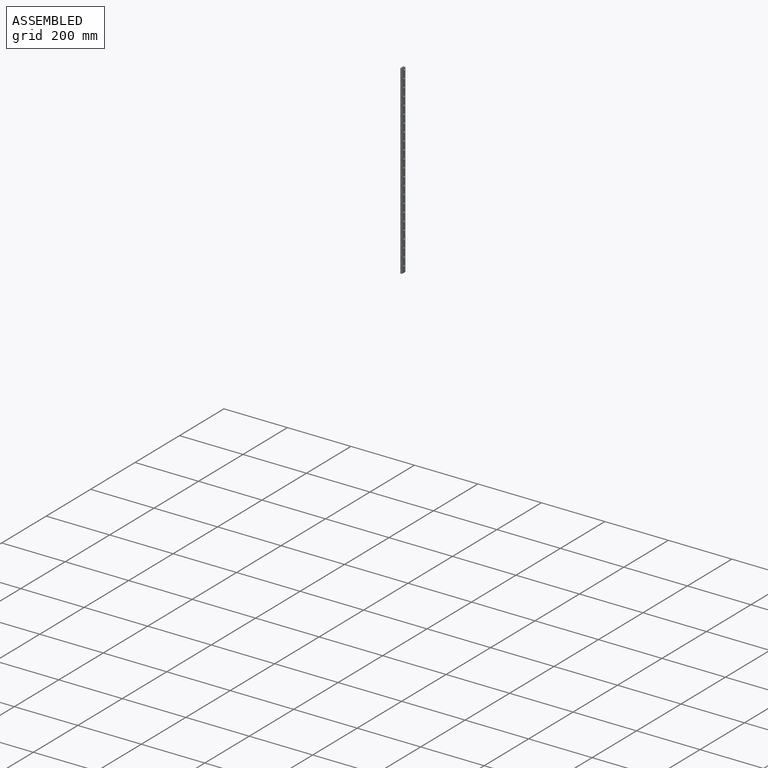
[diagram: assembled view]
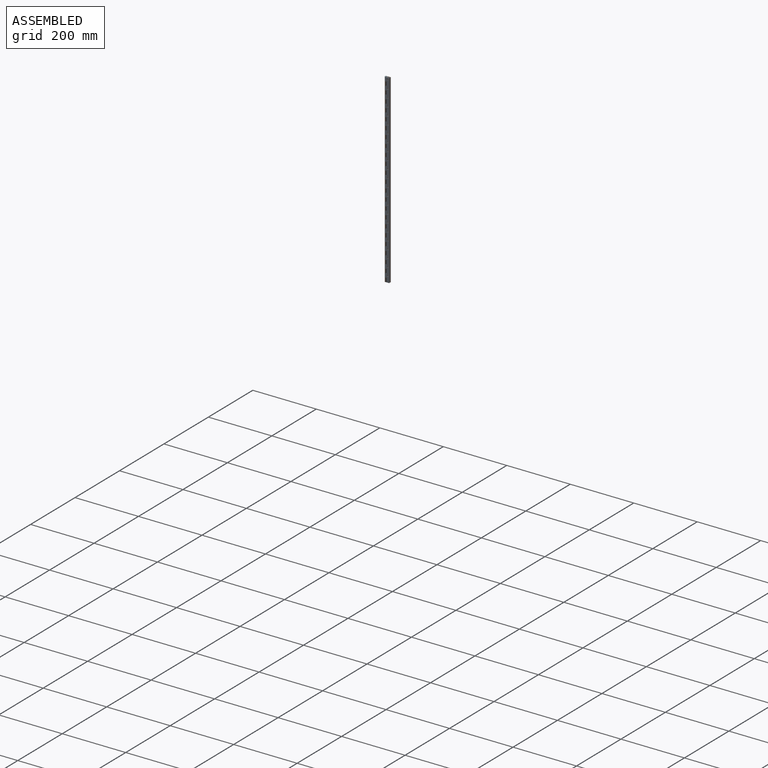
[diagram: assembled view, second angle]
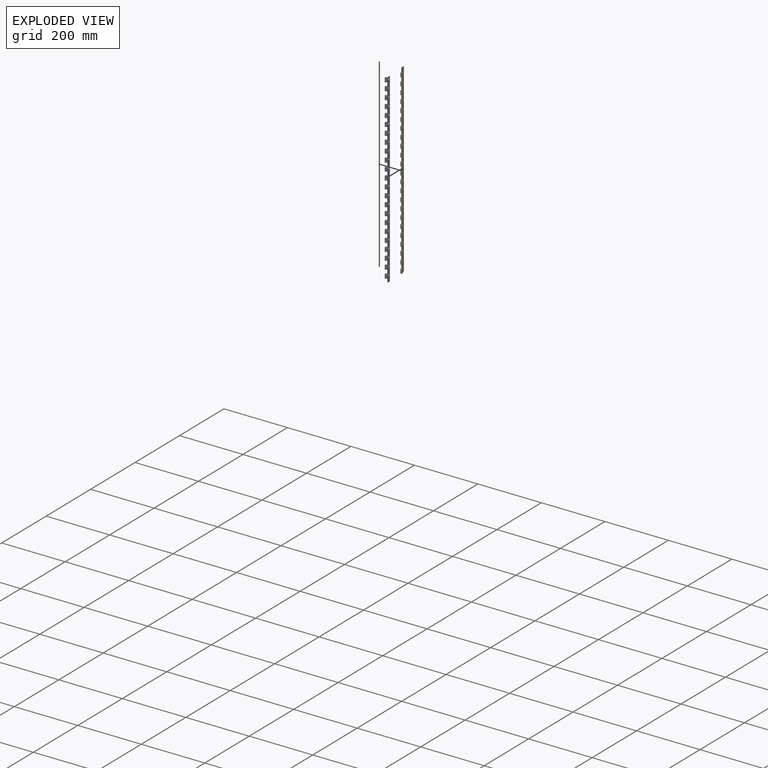
[diagram: exploded view]
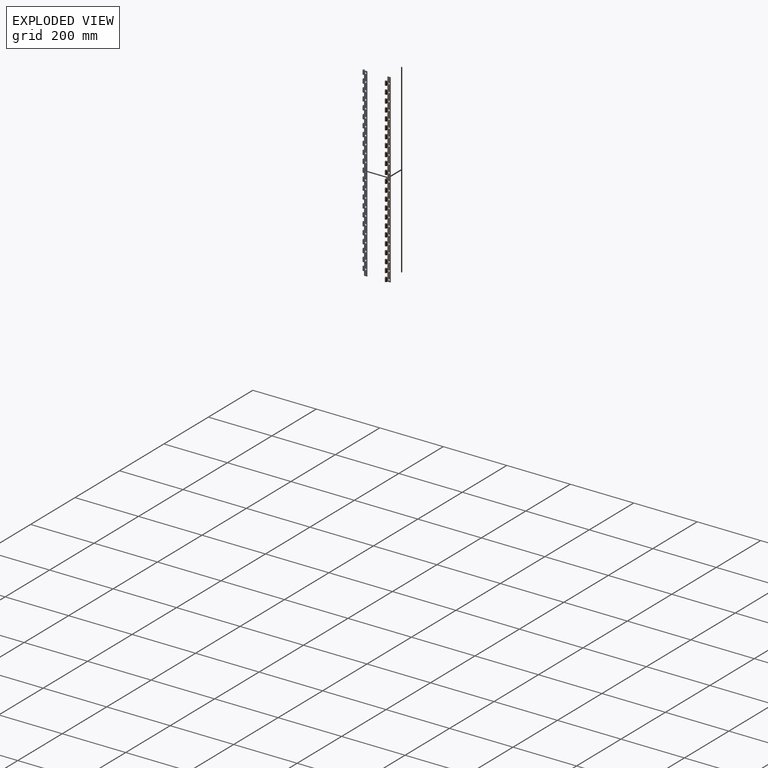
[diagram: exploded view, second angle]
ASSEMBLY  parts=3 mates=2
PART A: 211 faces, bbox 6.4x15.9x584.2 mm
  f0: plane 12.7x1.08mm, normal (0,1,0), area 13.7mm2, adj f67,f89,f160,f198
  f1: plane 12.7x1.08mm, normal (0,1,0), area 13.7mm2, adj f68,f90,f195,f199
  f2: plane 12.7x1.08mm, normal (0,1,0), area 13.7mm2, adj f69,f92,f162,f186
  f3: plane 12.7x1.08mm, normal (0,1,0), area 13.7mm2, adj f70,f93,f175,f180
  f4: plane 12.7x1.08mm, normal (0,1,0), area 13.7mm2, adj f71,f94,f171,f176
  f5: plane 12.7x1.08mm, normal (0,1,0), area 13.7mm2, adj f72,f91,f172,f196
  f6: plane 12.7x1.08mm, normal (0,1,0), area 13.7mm2, adj f73,f95,f167,f209
  f7: plane 12.7x1.08mm, normal (0,1,0), area 13.7mm2, adj f74,f96,f163,f166
  f8: plane 12.7x1.08mm, normal (0,1,0), area 13.7mm2, adj f75,f97,f157,f159
  f9: plane 12.7x1.08mm, normal (0,1,0), area 13.7mm2, adj f76,f99,f154,f156
  f10: plane 12.7x1.08mm, normal (0,1,0), area 13.7mm2, adj f77,f100,f151,f153
  f11: plane 12.7x1.08mm, normal (0,1,0), area 13.7mm2, adj f78,f101,f148,f150
  f12: plane 12.7x1.08mm, normal (0,1,0), area 13.7mm2, adj f79,f102,f145,f147
  f13: plane 12.7x1.08mm, normal (0,1,0), area 13.7mm2, adj f80,f103,f142,f144
  f14: plane 12.7x1.08mm, normal (0,1,0), area 13.7mm2, adj f81,f104,f139,f141
  f15: plane 12.7x1.08mm, normal (0,1,0), area 13.7mm2, adj f82,f105,f136,f138
  f16: plane 12.7x1.08mm, normal (0,1,0), area 13.7mm2, adj f83,f106,f133,f135
  f17: plane 12.7x1.08mm, normal (0,1,0), area 13.7mm2, adj f84,f107,f130,f132
  f18: plane 12.7x1.08mm, normal (0,1,0), area 13.7mm2, adj f85,f108,f127,f129
  f19: plane 12.7x1.08mm, normal (0,1,0), area 13.7mm2, adj f86,f109,f124,f126
  f20: plane 12.7x1.08mm, normal (0,1,0), area 13.7mm2, adj f87,f110,f123,f185
  f21: plane 12.7x1.08mm, normal (0,1,0), area 13.7mm2, adj f88,f98,f121,f179
  f22: plane 584.2x12.7mm, normal (-1,0,0), area 6082.2mm2, adj f23,f24,f25,f26,f27,f28,f29,f30
  f23: cylinder r=1.59mm len=12.7mm, axis (0,0,-1), area 95mm2, adj f22,f45,f160,f198
  f24: cylinder r=1.59mm len=12.7mm, axis (0,0,-1), area 95mm2, adj f22,f46,f195,f199
  f25: cylinder r=1.59mm len=12.7mm, axis (0,0,-1), area 95mm2, adj f22,f47,f162,f186
  f26: cylinder r=1.59mm len=12.7mm, axis (0,0,-1), area 95mm2, adj f22,f48,f175,f180
  f27: cylinder r=1.59mm len=12.7mm, axis (0,0,-1), area 95mm2, adj f22,f49,f171,f176
  f28: cylinder r=1.59mm len=12.7mm, axis (0,0,-1), area 95mm2, adj f22,f50,f172,f196
  f29: cylinder r=1.59mm len=12.7mm, axis (0,0,-1), area 95mm2, adj f22,f51,f167,f209
  f30: cylinder r=1.59mm len=12.7mm, axis (0,0,-1), area 95mm2, adj f22,f52,f163,f166
  f31: cylinder r=1.59mm len=12.7mm, axis (0,0,-1), area 95mm2, adj f22,f53,f157,f159
  f32: cylinder r=1.59mm len=12.7mm, axis (0,0,-1), area 95mm2, adj f22,f54,f154,f156
  f33: cylinder r=1.59mm len=12.7mm, axis (0,0,-1), area 95mm2, adj f22,f55,f151,f153
  f34: cylinder r=1.59mm len=12.7mm, axis (0,0,-1), area 95mm2, adj f22,f56,f148,f150
  f35: cylinder r=1.59mm len=12.7mm, axis (0,0,-1), area 95mm2, adj f22,f57,f145,f147
  f36: cylinder r=1.59mm len=12.7mm, axis (0,0,-1), area 95mm2, adj f22,f58,f142,f144
  f37: cylinder r=1.59mm len=12.7mm, axis (0,0,-1), area 95mm2, adj f22,f59,f139,f141
  f38: cylinder r=1.59mm len=12.7mm, axis (0,0,-1), area 95mm2, adj f22,f60,f136,f138
  f39: cylinder r=1.59mm len=12.7mm, axis (0,0,-1), area 95mm2, adj f22,f61,f133,f135
  f40: cylinder r=1.59mm len=12.7mm, axis (0,0,-1), area 95mm2, adj f22,f62,f130,f132
  f41: cylinder r=1.59mm len=12.7mm, axis (0,0,-1), area 95mm2, adj f22,f63,f127,f129
  f42: cylinder r=1.59mm len=12.7mm, axis (0,0,-1), area 95mm2, adj f22,f64,f124,f126
  f43: cylinder r=1.59mm len=12.7mm, axis (0,0,-1), area 95mm2, adj f22,f65,f123,f185
  f44: cylinder r=1.59mm len=12.7mm, axis (0,0,-1), area 95mm2, adj f22,f66,f121,f179
  f45: plane 12.7x1.08mm, normal (0,-1,0), area 13.7mm2, adj f23,f67,f160,f198
  f46: plane 12.7x1.08mm, normal (0,-1,0), area 13.7mm2, adj f24,f68,f195,f199
  f47: plane 12.7x1.08mm, normal (0,-1,0), area 13.7mm2, adj f25,f69,f162,f186
  f48: plane 12.7x1.08mm, normal (0,-1,0), area 13.7mm2, adj f26,f70,f175,f180
  f49: plane 12.7x1.08mm, normal (0,-1,0), area 13.7mm2, adj f27,f71,f171,f176
  f50: plane 12.7x1.08mm, normal (0,-1,0), area 13.7mm2, adj f28,f72,f172,f196
  f51: plane 12.7x1.08mm, normal (0,-1,0), area 13.7mm2, adj f29,f73,f167,f209
  f52: plane 12.7x1.08mm, normal (0,-1,0), area 13.7mm2, adj f30,f74,f163,f166
  f53: plane 12.7x1.08mm, normal (0,-1,0), area 13.7mm2, adj f31,f75,f157,f159
  f54: plane 12.7x1.08mm, normal (0,-1,0), area 13.7mm2, adj f32,f76,f154,f156
  f55: plane 12.7x1.08mm, normal (0,-1,0), area 13.7mm2, adj f33,f77,f151,f153
  f56: plane 12.7x1.08mm, normal (0,-1,0), area 13.7mm2, adj f34,f78,f148,f150
  f57: plane 12.7x1.08mm, normal (0,-1,0), area 13.7mm2, adj f35,f79,f145,f147
  f58: plane 12.7x1.08mm, normal (0,-1,0), area 13.7mm2, adj f36,f80,f142,f144
  f59: plane 12.7x1.08mm, normal (0,-1,0), area 13.7mm2, adj f37,f81,f139,f141
  f60: plane 12.7x1.08mm, normal (0,-1,0), area 13.7mm2, adj f38,f82,f136,f138
  f61: plane 12.7x1.08mm, normal (0,-1,0), area 13.7mm2, adj f39,f83,f133,f135
  f62: plane 12.7x1.08mm, normal (0,-1,0), area 13.7mm2, adj f40,f84,f130,f132
  f63: plane 12.7x1.08mm, normal (0,-1,0), area 13.7mm2, adj f41,f85,f127,f129
  f64: plane 12.7x1.08mm, normal (0,-1,0), area 13.7mm2, adj f42,f86,f124,f126
  f65: plane 12.7x1.08mm, normal (0,-1,0), area 13.7mm2, adj f43,f87,f123,f185
  f66: plane 12.7x1.08mm, normal (0,-1,0), area 13.7mm2, adj f44,f88,f121,f179
  f67: plane 12.7x1.59mm, normal (1,0,0), area 20.2mm2, adj f0,f45,f160,f198
  f68: plane 12.7x1.59mm, normal (1,0,0), area 20.2mm2, adj f1,f46,f195,f199
  f69: plane 12.7x1.59mm, normal (1,0,0), area 20.2mm2, adj f2,f47,f162,f186
  f70: plane 12.7x1.59mm, normal (1,0,0), area 20.2mm2, adj f3,f48,f175,f180
  f71: plane 12.7x1.59mm, normal (1,0,0), area 20.2mm2, adj f4,f49,f171,f176
  f72: plane 12.7x1.59mm, normal (1,0,0), area 20.2mm2, adj f5,f50,f172,f196
  f73: plane 12.7x1.59mm, normal (1,0,0), area 20.2mm2, adj f6,f51,f167,f209
  f74: plane 12.7x1.59mm, normal (1,0,0), area 20.2mm2, adj f7,f52,f163,f166
  f75: plane 12.7x1.59mm, normal (1,0,0), area 20.2mm2, adj f8,f53,f157,f159
  f76: plane 12.7x1.59mm, normal (1,0,0), area 20.2mm2, adj f9,f54,f154,f156
  f77: plane 12.7x1.59mm, normal (1,0,0), area 20.2mm2, adj f10,f55,f151,f153
  f78: plane 12.7x1.59mm, normal (1,0,0), area 20.2mm2, adj f11,f56,f148,f150
  f79: plane 12.7x1.59mm, normal (1,0,0), area 20.2mm2, adj f12,f57,f145,f147
  f80: plane 12.7x1.59mm, normal (1,0,0), area 20.2mm2, adj f13,f58,f142,f144
  f81: plane 12.7x1.59mm, normal (1,0,0), area 20.2mm2, adj f14,f59,f139,f141
  f82: plane 12.7x1.59mm, normal (1,0,0), area 20.2mm2, adj f15,f60,f136,f138
  f83: plane 12.7x1.59mm, normal (1,0,0), area 20.2mm2, adj f16,f61,f133,f135
  f84: plane 12.7x1.59mm, normal (1,0,0), area 20.2mm2, adj f17,f62,f130,f132
  f85: plane 12.7x1.59mm, normal (1,0,0), area 20.2mm2, adj f18,f63,f127,f129
  f86: plane 12.7x1.59mm, normal (1,0,0), area 20.2mm2, adj f19,f64,f124,f126
  f87: plane 12.7x1.59mm, normal (1,0,0), area 20.2mm2, adj f20,f65,f123,f185
  f88: plane 12.7x1.59mm, normal (1,0,0), area 20.2mm2, adj f21,f66,f121,f179
  f89: cylinder r=3.17mm len=12.7mm, axis (0,0,-1), area 190mm2, adj f0,f111,f160,f198
  f90: cylinder r=3.17mm len=12.7mm, axis (0,0,-1), area 190mm2, adj f1,f111,f195,f199
  f91: cylinder r=3.17mm len=12.7mm, axis (0,0,-1), area 190mm2, adj f5,f111,f172,f196
  f92: cylinder r=3.17mm len=12.7mm, axis (0,0,-1), area 190mm2, adj f2,f111,f162,f186
  f93: cylinder r=3.17mm len=12.7mm, axis (0,0,-1), area 190mm2, adj f3,f111,f175,f180
  f94: cylinder r=3.17mm len=12.7mm, axis (0,0,-1), area 190mm2, adj f4,f111,f171,f176
  f95: cylinder r=3.17mm len=12.7mm, axis (0,0,-1), area 190mm2, adj f6,f111,f167,f209
  f96: cylinder r=3.17mm len=12.7mm, axis (0,0,-1), area 190mm2, adj f7,f111,f163,f166
  f97: cylinder r=3.17mm len=12.7mm, axis (0,0,-1), area 190mm2, adj f8,f111,f157,f159
  f98: cylinder r=3.17mm len=12.7mm, axis (0,0,-1), area 190mm2, adj f21,f111,f121,f179
  f99: cylinder r=3.17mm len=12.7mm, axis (0,0,-1), area 190mm2, adj f9,f111,f154,f156
  f100: cylinder r=3.17mm len=12.7mm, axis (0,0,-1), area 190mm2, adj f10,f111,f151,f153
  f101: cylinder r=3.17mm len=12.7mm, axis (0,0,-1), area 190mm2, adj f11,f111,f148,f150
  f102: cylinder r=3.17mm len=12.7mm, axis (0,0,-1), area 190mm2, adj f12,f111,f145,f147
  f103: cylinder r=3.17mm len=12.7mm, axis (0,0,-1), area 190mm2, adj f13,f111,f142,f144
  f104: cylinder r=3.17mm len=12.7mm, axis (0,0,-1), area 190mm2, adj f14,f111,f139,f141
  f105: cylinder r=3.17mm len=12.7mm, axis (0,0,-1), area 190mm2, adj f15,f111,f136,f138
  f106: cylinder r=3.17mm len=12.7mm, axis (0,0,-1), area 190mm2, adj f16,f111,f133,f135
  f107: cylinder r=3.17mm len=12.7mm, axis (0,0,-1), area 190mm2, adj f17,f111,f130,f132
  f108: cylinder r=3.17mm len=12.7mm, axis (0,0,-1), area 190mm2, adj f18,f111,f127,f129
  f109: cylinder r=3.17mm len=12.7mm, axis (0,0,-1), area 190mm2, adj f19,f111,f124,f126
  f110: cylinder r=3.17mm len=12.7mm, axis (0,0,-1), area 190mm2, adj f20,f111,f123,f185
  f111: plane 584.2x12.7mm, normal (1,0,0), area 6082.2mm2, adj f89,f90,f91,f92,f93,f94,f95,f96
  f112: plane 9.53x1.59mm, normal (0,0,-1), area 15.1mm2, adj f22,f111,f113,f210
  f113: plane 584.2x1.59mm, normal (0,1,0), area 927.4mm2, adj f22,f111,f112,f119
  f114: cylinder r=1.59mm len=12.7mm, axis (0,0,-1), area 95mm2, adj f22,f115,f119,f120
  f115: plane 12.7x1.08mm, normal (0,-1,0), area 13.7mm2, adj f114,f116,f119,f120
  f116: plane 12.7x1.59mm, normal (1,0,0), area 20.2mm2, adj f115,f117,f119,f120
  f117: plane 12.7x1.08mm, normal (0,1,0), area 13.7mm2, adj f116,f118,f119,f120
  f118: cylinder r=3.17mm len=12.7mm, axis (0,0,-1), area 190mm2, adj f111,f117,f119,f120
  f119: plane 15.88x6.35mm, normal (0,0,1), area 39.7mm2, adj f22,f111,f113,f114,f115,f116,f117,f118
  f120: plane 6.35x6.35mm, normal (0,0,-1), area 24.6mm2, adj f22,f111,f114,f115,f116,f117,f118,f122
  f121: plane 6.35x6.35mm, normal (0,0,1), area 24.6mm2, adj f21,f22,f44,f66,f88,f98,f111,f122
  f122: plane 12.7x1.59mm, normal (0,-1,0), area 20.2mm2, adj f22,f111,f120,f121
  f123: plane 6.35x6.35mm, normal (0,0,1), area 24.6mm2, adj f20,f22,f43,f65,f87,f110,f111,f125
  f124: plane 6.35x6.35mm, normal (0,0,-1), area 24.6mm2, adj f19,f22,f42,f64,f86,f109,f111,f125
  f125: plane 12.7x1.59mm, normal (0,-1,0), area 20.2mm2, adj f22,f111,f123,f124
  f126: plane 6.35x6.35mm, normal (0,0,1), area 24.6mm2, adj f19,f22,f42,f64,f86,f109,f111,f128
  f127: plane 6.35x6.35mm, normal (0,0,-1), area 24.6mm2, adj f18,f22,f41,f63,f85,f108,f111,f128
  f128: plane 12.7x1.59mm, normal (0,-1,0), area 20.2mm2, adj f22,f111,f126,f127
  f129: plane 6.35x6.35mm, normal (0,0,1), area 24.6mm2, adj f18,f22,f41,f63,f85,f108,f111,f131
  f130: plane 6.35x6.35mm, normal (0,0,-1), area 24.6mm2, adj f17,f22,f40,f62,f84,f107,f111,f131
  f131: plane 12.7x1.59mm, normal (0,-1,0), area 20.2mm2, adj f22,f111,f129,f130
  f132: plane 6.35x6.35mm, normal (0,0,1), area 24.6mm2, adj f17,f22,f40,f62,f84,f107,f111,f134
  f133: plane 6.35x6.35mm, normal (0,0,-1), area 24.6mm2, adj f16,f22,f39,f61,f83,f106,f111,f134
  f134: plane 12.7x1.59mm, normal (0,-1,0), area 20.2mm2, adj f22,f111,f132,f133
  f135: plane 6.35x6.35mm, normal (0,0,1), area 24.6mm2, adj f16,f22,f39,f61,f83,f106,f111,f137
  f136: plane 6.35x6.35mm, normal (0,0,-1), area 24.6mm2, adj f15,f22,f38,f60,f82,f105,f111,f137
  f137: plane 12.7x1.59mm, normal (0,-1,0), area 20.2mm2, adj f22,f111,f135,f136
  f138: plane 6.35x6.35mm, normal (0,0,1), area 24.6mm2, adj f15,f22,f38,f60,f82,f105,f111,f140
  f139: plane 6.35x6.35mm, normal (0,0,-1), area 24.6mm2, adj f14,f22,f37,f59,f81,f104,f111,f140
  f140: plane 12.7x1.59mm, normal (0,-1,0), area 20.2mm2, adj f22,f111,f138,f139
  f141: plane 6.35x6.35mm, normal (0,0,1), area 24.6mm2, adj f14,f22,f37,f59,f81,f104,f111,f143
  f142: plane 6.35x6.35mm, normal (0,0,-1), area 24.6mm2, adj f13,f22,f36,f58,f80,f103,f111,f143
  f143: plane 12.7x1.59mm, normal (0,-1,0), area 20.2mm2, adj f22,f111,f141,f142
  f144: plane 6.35x6.35mm, normal (0,0,1), area 24.6mm2, adj f13,f22,f36,f58,f80,f103,f111,f146
  f145: plane 6.35x6.35mm, normal (0,0,-1), area 24.6mm2, adj f12,f22,f35,f57,f79,f102,f111,f146
  f146: plane 12.7x1.59mm, normal (0,-1,0), area 20.2mm2, adj f22,f111,f144,f145
  f147: plane 6.35x6.35mm, normal (0,0,1), area 24.6mm2, adj f12,f22,f35,f57,f79,f102,f111,f149
  f148: plane 6.35x6.35mm, normal (0,0,-1), area 24.6mm2, adj f11,f22,f34,f56,f78,f101,f111,f149
  f149: plane 12.7x1.59mm, normal (0,-1,0), area 20.2mm2, adj f22,f111,f147,f148
  f150: plane 6.35x6.35mm, normal (0,0,1), area 24.6mm2, adj f11,f22,f34,f56,f78,f101,f111,f152
  f151: plane 6.35x6.35mm, normal (0,0,-1), area 24.6mm2, adj f10,f22,f33,f55,f77,f100,f111,f152
  f152: plane 12.7x1.59mm, normal (0,-1,0), area 20.2mm2, adj f22,f111,f150,f151
  f153: plane 6.35x6.35mm, normal (0,0,1), area 24.6mm2, adj f10,f22,f33,f55,f77,f100,f111,f155
  f154: plane 6.35x6.35mm, normal (0,0,-1), area 24.6mm2, adj f9,f22,f32,f54,f76,f99,f111,f155
  f155: plane 12.7x1.59mm, normal (0,-1,0), area 20.2mm2, adj f22,f111,f153,f154
  f156: plane 6.35x6.35mm, normal (0,0,1), area 24.6mm2, adj f9,f22,f32,f54,f76,f99,f111,f158
  f157: plane 6.35x6.35mm, normal (0,0,-1), area 24.6mm2, adj f8,f22,f31,f53,f75,f97,f111,f158
  f158: plane 12.7x1.59mm, normal (0,-1,0), area 20.2mm2, adj f22,f111,f156,f157
  f159: plane 6.35x6.35mm, normal (0,0,1), area 24.6mm2, adj f8,f22,f31,f53,f75,f97,f111,f161
  f160: plane 6.35x6.35mm, normal (0,0,-1), area 24.6mm2, adj f0,f22,f23,f45,f67,f89,f111,f161
  f161: plane 12.7x1.59mm, normal (0,-1,0), area 20.2mm2, adj f22,f111,f159,f160
  f162: plane 6.35x6.35mm, normal (0,0,-1), area 24.6mm2, adj f2,f22,f25,f47,f69,f92,f111,f164
  f163: plane 6.35x6.35mm, normal (0,0,1), area 24.6mm2, adj f7,f22,f30,f52,f74,f96,f111,f164
  f164: plane 12.7x1.59mm, normal (0,-1,0), area 20.2mm2, adj f22,f111,f162,f163
  f165: cylinder r=2.38mm len=4.76mm, axis (1,0,0), area 23.8mm2, adj f22,f111
  f166: plane 6.35x6.35mm, normal (0,0,-1), area 24.6mm2, adj f7,f22,f30,f52,f74,f96,f111,f168
  f167: plane 6.35x6.35mm, normal (0,0,1), area 24.6mm2, adj f6,f22,f29,f51,f73,f95,f111,f168
  f168: plane 12.7x1.59mm, normal (0,-1,0), area 20.2mm2, adj f22,f111,f166,f167
  f169: cylinder r=2.38mm len=4.76mm, axis (1,0,0), area 23.8mm2, adj f22,f111
  f170: cylinder r=2.38mm len=4.76mm, axis (1,0,0), area 23.8mm2, adj f22,f111
  f171: plane 6.35x6.35mm, normal (0,0,-1), area 24.6mm2, adj f4,f22,f27,f49,f71,f94,f111,f173
  f172: plane 6.35x6.35mm, normal (0,0,1), area 24.6mm2, adj f5,f22,f28,f50,f72,f91,f111,f173
  f173: plane 12.7x1.59mm, normal (0,-1,0), area 20.2mm2, adj f22,f111,f171,f172
  f174: cylinder r=2.38mm len=4.76mm, axis (1,0,0), area 23.8mm2, adj f22,f111
  f175: plane 6.35x6.35mm, normal (0,0,-1), area 24.6mm2, adj f3,f22,f26,f48,f70,f93,f111,f177
  f176: plane 6.35x6.35mm, normal (0,0,1), area 24.6mm2, adj f4,f22,f27,f49,f71,f94,f111,f177
  f177: plane 12.7x1.59mm, normal (0,-1,0), area 20.2mm2, adj f22,f111,f175,f176
  f178: cylinder r=2.38mm len=4.76mm, axis (1,0,0), area 23.8mm2, adj f22,f111
  f179: plane 6.35x6.35mm, normal (0,0,-1), area 24.6mm2, adj f21,f22,f44,f66,f88,f98,f111,f181
  f180: plane 6.35x6.35mm, normal (0,0,1), area 24.6mm2, adj f3,f22,f26,f48,f70,f93,f111,f181
  f181: plane 12.7x1.59mm, normal (0,-1,0), area 20.2mm2, adj f22,f111,f179,f180
  f182: cylinder r=2.38mm len=4.76mm, axis (1,0,0), area 23.8mm2, adj f22,f111
  f183: cylinder r=2.38mm len=4.76mm, axis (1,0,0), area 23.8mm2, adj f22,f111
  f184: cylinder r=2.38mm len=4.76mm, axis (1,0,0), area 23.8mm2, adj f22,f111
  f185: plane 6.35x6.35mm, normal (0,0,-1), area 24.6mm2, adj f20,f22,f43,f65,f87,f110,f111,f187
  f186: plane 6.35x6.35mm, normal (0,0,1), area 24.6mm2, adj f2,f22,f25,f47,f69,f92,f111,f187
  f187: plane 12.7x1.59mm, normal (0,-1,0), area 20.2mm2, adj f22,f111,f185,f186
  f188: cylinder r=2.38mm len=4.76mm, axis (1,0,0), area 23.8mm2, adj f22,f111
  f189: cylinder r=2.38mm len=4.76mm, axis (1,0,0), area 23.8mm2, adj f22,f111
  f190: cylinder r=2.38mm len=4.76mm, axis (1,0,0), area 23.8mm2, adj f22,f111
  f191: cylinder r=2.38mm len=4.76mm, axis (1,0,0), area 23.8mm2, adj f22,f111
  f192: cylinder r=2.38mm len=4.76mm, axis (1,0,0), area 23.8mm2, adj f22,f111
  f193: cylinder r=2.38mm len=4.76mm, axis (1,0,0), area 23.8mm2, adj f22,f111
  f194: cylinder r=2.38mm len=4.76mm, axis (1,0,0), area 23.8mm2, adj f22,f111
  f195: plane 6.35x6.35mm, normal (0,0,1), area 24.6mm2, adj f1,f22,f24,f46,f68,f90,f111,f197
  f196: plane 6.35x6.35mm, normal (0,0,-1), area 24.6mm2, adj f5,f22,f28,f50,f72,f91,f111,f197
  f197: plane 12.7x1.59mm, normal (0,-1,0), area 20.2mm2, adj f22,f111,f195,f196
  f198: plane 6.35x6.35mm, normal (0,0,1), area 24.6mm2, adj f0,f22,f23,f45,f67,f89,f111,f200
  f199: plane 6.35x6.35mm, normal (0,0,-1), area 24.6mm2, adj f1,f22,f24,f46,f68,f90,f111,f200
  f200: plane 12.7x1.59mm, normal (0,-1,0), area 20.2mm2, adj f22,f111,f198,f199
  f201: cylinder r=2.38mm len=4.76mm, axis (1,0,0), area 23.8mm2, adj f22,f111
  f202: cylinder r=2.38mm len=4.76mm, axis (1,0,0), area 23.8mm2, adj f22,f111
  f203: cylinder r=2.38mm len=4.76mm, axis (1,0,0), area 23.8mm2, adj f22,f111
  f204: cylinder r=2.38mm len=4.76mm, axis (1,0,0), area 23.8mm2, adj f22,f111
  f205: cylinder r=2.38mm len=4.76mm, axis (1,0,0), area 23.8mm2, adj f22,f111
  f206: cylinder r=2.38mm len=4.76mm, axis (1,0,0), area 23.8mm2, adj f22,f111
  f207: cylinder r=2.38mm len=4.76mm, axis (1,0,0), area 23.8mm2, adj f22,f111
  f208: cylinder r=2.38mm len=4.76mm, axis (1,0,0), area 23.8mm2, adj f22,f111
  f209: plane 6.35x6.35mm, normal (0,0,-1), area 24.6mm2, adj f6,f22,f29,f51,f73,f95,f111,f210
  f210: plane 12.7x1.59mm, normal (0,-1,0), area 20.2mm2, adj f22,f111,f112,f209
PART B: same geometry as A
PART C: 3 faces, bbox 3.2x3.2x584.2 mm
  f0: cylinder r=1.59mm len=584.2mm, axis (0,0,-1), area 5827.1mm2, adj f1,f2
  f1: plane 3.18x3.18mm, normal (0,0,1), area 7.9mm2, adj f0
  f2: plane 3.18x3.18mm, normal (0,0,-1), area 7.9mm2, adj f0
PLACE A at identity fixed
PLACE B rot(axis=(0,1,0),180deg) t=(0,0,0)mm
PLACE C at identity
MATE revolute B.f89 <-> A.f89  axis (0,0,1) through (0,0,279.4)mm
MATE fastened C.f0 <-> A.f89  axis (0,0,1) through (0,0,292.1)mm
